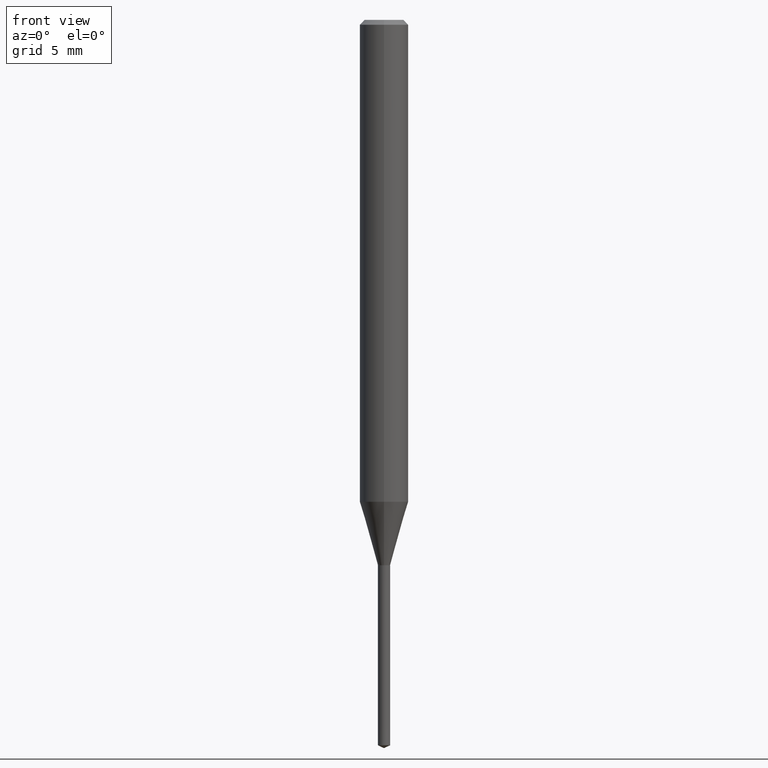
[diagram: clean part render]
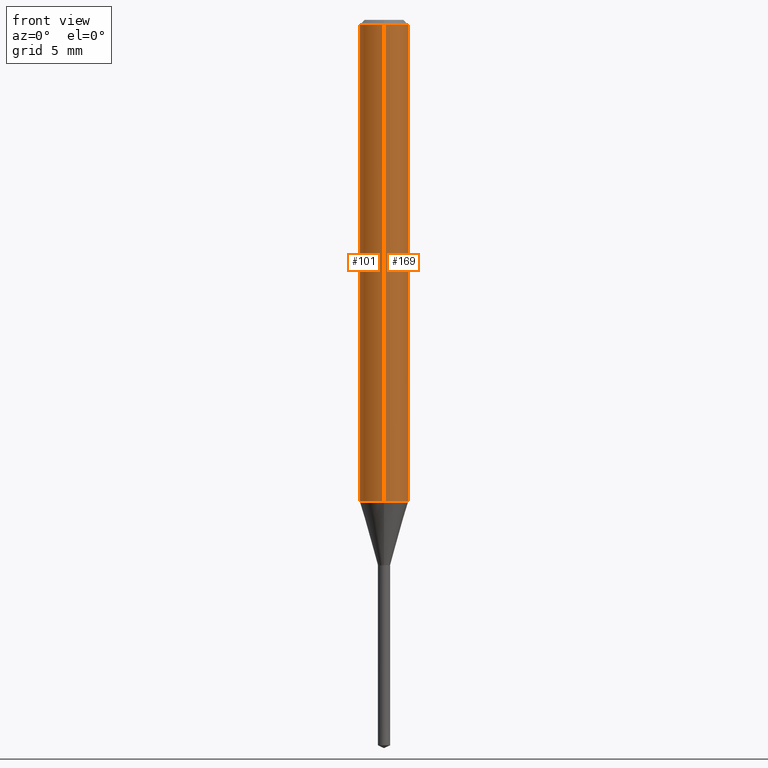
[diagram: same view with one multi-face feature highlighted, each face labeled with its STEP entity id]
A machine part, front view. The highlighted faces form ONE feature: a constant-radius fillet chain: 2 tangent blend faces with common blend radius 1.5 mm. The faces share edges in the B-rep.
Their STEP definitions:
[1] entity #169 (Cylinder):
#97=EDGE_CURVE('',#183,#175,#232,.T.);
#129=VERTEX_POINT('',#269);
#137=VERTEX_POINT('',#277);
#161=EDGE_CURVE('',#129,#137,#306,.T.);
#163=EDGE_CURVE('',#129,#175,#308,.T.);
#169=ADVANCED_FACE('',(#314),#315,.T.);
#175=VERTEX_POINT('',#321);
#179=EDGE_CURVE('',#137,#183,#326,.T.);
#183=VERTEX_POINT('',#331);
#232=LINE('',#375,#376);
#269=CARTESIAN_POINT('',(0.0,1.5,-0.300000000000001));
#277=CARTESIAN_POINT('',(0.0,1.5,-29.777));
#306=LINE('',#468,#469);
#308=CIRCLE('',#472,1.5);
#314=FACE_OUTER_BOUND('',#481,.T.);
#315=CYLINDRICAL_SURFACE('',#482,1.5);
#321=CARTESIAN_POINT('',(1.83690953073357E-016,-1.5,-0.300000000000001));
#326=CIRCLE('',#497,1.5);
#331=CARTESIAN_POINT('',(1.83690953073357E-016,-1.5,-29.777));
#375=CARTESIAN_POINT('',(1.83690953073357E-016,-1.5,-15.0385));
#376=VECTOR('',#539,1.0);
#468=CARTESIAN_POINT('',(-1.83690953073357E-016,1.5,-15.0385));
#469=VECTOR('',#639,1.0);
#472=AXIS2_PLACEMENT_3D('',#640,#641,#642);
#481=EDGE_LOOP('',(#648,#649,#650,#651));
#482=AXIS2_PLACEMENT_3D('',#652,#653,#654);
#497=AXIS2_PLACEMENT_3D('',#667,#668,#669);
#539=DIRECTION('',(-0.0,-0.0,1.0));
#639=DIRECTION('',(0.0,0.0,-1.0));
#640=CARTESIAN_POINT('',(0.0,0.0,-0.300000000000001));
#641=DIRECTION('',(0.0,0.0,-1.0));
#642=DIRECTION('',(0.0,1.0,0.0));
#648=ORIENTED_EDGE('',*,*,#161,.F.);
#649=ORIENTED_EDGE('',*,*,#163,.T.);
#650=ORIENTED_EDGE('',*,*,#97,.F.);
#651=ORIENTED_EDGE('',*,*,#179,.F.);
#652=CARTESIAN_POINT('',(0.0,0.0,-15.0385));
#653=DIRECTION('',(-0.0,-0.0,1.0));
#654=DIRECTION('',(0.0,1.0,0.0));
#667=CARTESIAN_POINT('',(0.0,0.0,-29.777));
#668=DIRECTION('',(0.0,0.0,-1.0));
#669=DIRECTION('',(0.0,1.0,0.0));
[2] entity #101 (Cylinder):
#97=EDGE_CURVE('',#183,#175,#232,.T.);
#101=ADVANCED_FACE('',(#236),#237,.T.);
#123=EDGE_CURVE('',#175,#129,#262,.T.);
#129=VERTEX_POINT('',#269);
#131=EDGE_CURVE('',#183,#137,#271,.T.);
#137=VERTEX_POINT('',#277);
#161=EDGE_CURVE('',#129,#137,#306,.T.);
#175=VERTEX_POINT('',#321);
#183=VERTEX_POINT('',#331);
#232=LINE('',#375,#376);
#236=FACE_OUTER_BOUND('',#381,.T.);
#237=CYLINDRICAL_SURFACE('',#382,1.5);
#262=CIRCLE('',#412,1.5);
#269=CARTESIAN_POINT('',(0.0,1.5,-0.300000000000001));
#271=CIRCLE('',#422,1.5);
#277=CARTESIAN_POINT('',(0.0,1.5,-29.777));
#306=LINE('',#468,#469);
#321=CARTESIAN_POINT('',(1.83690953073357E-016,-1.5,-0.300000000000001));
#331=CARTESIAN_POINT('',(1.83690953073357E-016,-1.5,-29.777));
#375=CARTESIAN_POINT('',(1.83690953073357E-016,-1.5,-15.0385));
#376=VECTOR('',#539,1.0);
#381=EDGE_LOOP('',(#544,#545,#546,#547));
#382=AXIS2_PLACEMENT_3D('',#548,#549,#550);
#412=AXIS2_PLACEMENT_3D('',#579,#580,#581);
#422=AXIS2_PLACEMENT_3D('',#590,#591,#592);
#468=CARTESIAN_POINT('',(-1.83690953073357E-016,1.5,-15.0385));
#469=VECTOR('',#639,1.0);
#539=DIRECTION('',(-0.0,-0.0,1.0));
#544=ORIENTED_EDGE('',*,*,#161,.T.);
#545=ORIENTED_EDGE('',*,*,#131,.F.);
#546=ORIENTED_EDGE('',*,*,#97,.T.);
#547=ORIENTED_EDGE('',*,*,#123,.T.);
#548=CARTESIAN_POINT('',(0.0,0.0,-15.0385));
#549=DIRECTION('',(-0.0,-0.0,1.0));
#550=DIRECTION('',(0.0,1.0,0.0));
#579=CARTESIAN_POINT('',(0.0,0.0,-0.300000000000001));
#580=DIRECTION('',(0.0,0.0,-1.0));
#581=DIRECTION('',(0.0,1.0,0.0));
#590=CARTESIAN_POINT('',(0.0,0.0,-29.777));
#591=DIRECTION('',(0.0,0.0,-1.0));
#592=DIRECTION('',(0.0,1.0,0.0));
#639=DIRECTION('',(0.0,0.0,-1.0));